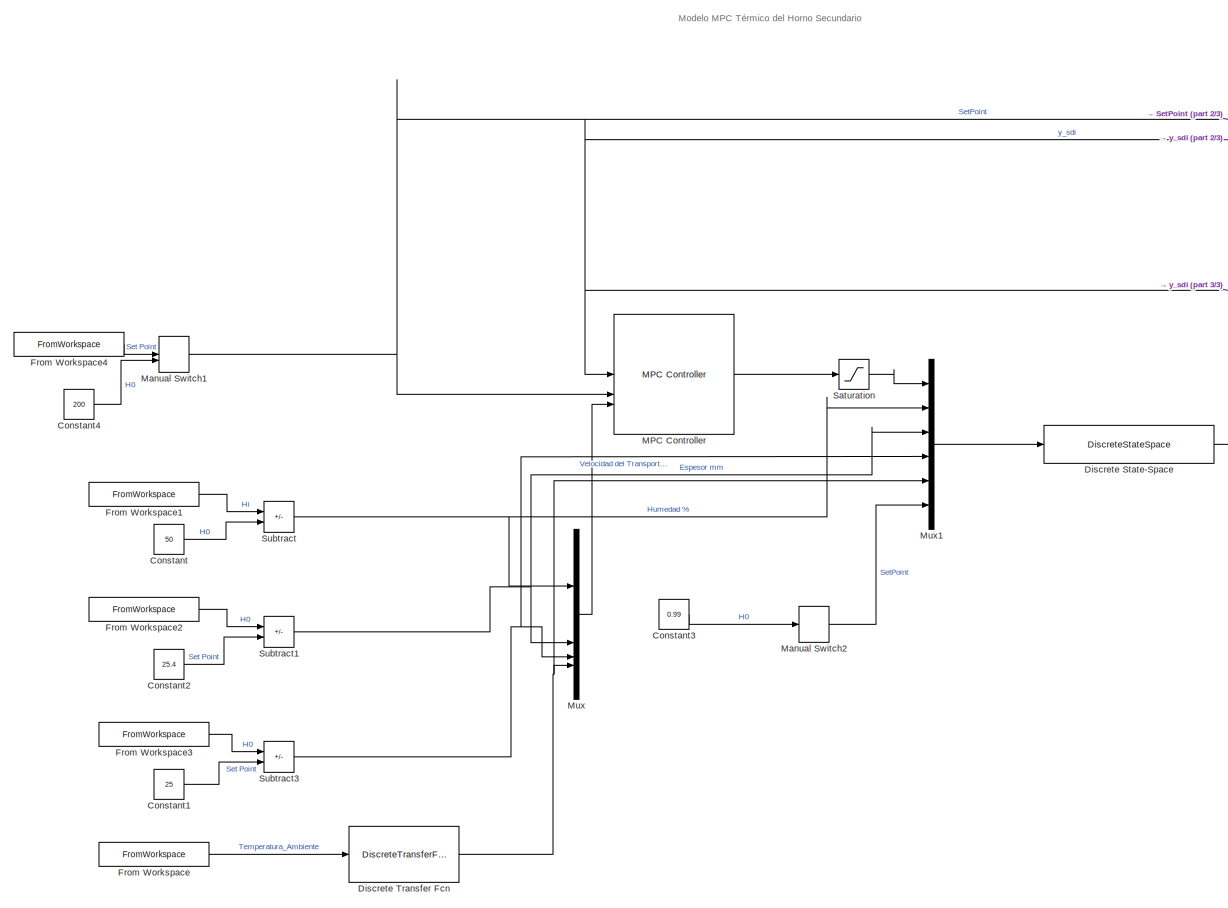
[diagram: root canvas - part 1/3, most of the canvas]
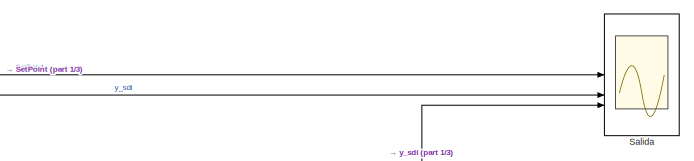
[diagram: root canvas - part 2/3, top right region]
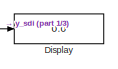
[diagram: root canvas - part 3/3, middle right region]
MODEL slx_8f8891e07308
KIND model
CONFIG AbsTol = auto
CONFIG EnableMultiTasking = off
CONFIG FixedStep = auto
CONFIG MaxStep = 1.0
CONFIG MinStep = auto
CONFIG RelTol = 1e-3
CONFIG SampleTimeConstraint = Unconstrained
CONFIG SolverName = FixedStepDiscrete
CONFIG StartTime = 0.0
CONFIG StopTime = 8000
BLOCK [Constant] Constant
  Value = 50
BLOCK [Constant] Constant1
  Value = 25
BLOCK [Constant] Constant2
  Value = 25.4
BLOCK [Constant] Constant3
  Value = 0.99
BLOCK [Constant] Constant4
  Value = 200
BLOCK [DiscreteStateSpace] Discrete State-Space
  A = Amd
  B = B_all
  C = Cmd
  D = D_all
BLOCK [DiscreteTransferFcn] Discrete Transfer Fcn
  CloseFcn = dspblkCoreblockFVToolHelper(gcbh,'close');
  CopyFcn = dspblkCoreblockFVToolHelper(gcbh,'copy');
  DeleteFcn = dspblkCoreblockFVToolHelper(gcbh,'close');
  Denominator = [1 -0.9950]
  InputPortMap = u0
  LoadFcn = dspblkCoreblockFVToolHelper(gcbh,'load');
  ModelCloseFcn = dspblkCoreblockFVToolHelper(gcbh,'close');
  Numerator = [0 0.0050]
  PostSaveFcn = dspblkCoreblockFVToolHelper(gcbh,'postsave');
  PreSaveFcn = dspblkCoreblockFVToolHelper(gcbh,'presave');
BLOCK [Display] Display
  Decimation = 3
  NameLocation = top
BLOCK [FromWorkspace] From Workspace
  OutputAfterFinalValue = Holding final value
  VariableName = deltaTempAmb_s
BLOCK [FromWorkspace] From Workspace1
  OutputAfterFinalValue = Holding final value
  VariableName = humedad_s
BLOCK [FromWorkspace] From Workspace2
  OutputAfterFinalValue = Holding final value
  VariableName = espesor_s
BLOCK [FromWorkspace] From Workspace3
  OutputAfterFinalValue = Holding final value
  VariableName = velocidad_s
BLOCK [FromWorkspace] From Workspace4
  OutputAfterFinalValue = Holding final value
  VariableName = sp
BLOCK [Reference] MPC Controller  REF=mpclib/MPC Controller  (lib defined in mdl_ae329e0e0455)
  SCDEnableBlockLinearizationSpecification = on
  SourceBlock = mpclib/MPC Controller
  SourceType = MPC
BLOCK [ManualSwitch] Manual Switch1
BLOCK [ManualSwitch] Manual Switch2
  CurrentSetting = 0
BLOCK [Mux] Mux
  DisplayOption = bar
BLOCK [Mux] Mux1
  DisplayOption = bar
  Inputs = 6
BLOCK [Scope] Salida
  ActiveDisplayYMaximum = 334.68575661195723
  ActiveDisplayYMinimum = 27.792171201159192
  ContainerLayout = {"WindowBounds":[128,48,1280,768],"gridDimensions":{"w":1,"h":1},"tileCount":1,"tileCoverage":1,"columnWeights":1,"rowWeights":1,"tileOccupancy":{}}
  DataLoggingVariableName = ScopeData2
  DisplayFullPath = on
  Floating = off
  GraphicalSettings = {"AxesScalingProperties":{"AlignXAxis":"Center","AlignYAxis":"Center","AutoScaleXAxisLimits":false,"AxesScaling":"Manual","AxesScalingNumUpdates":10,"ExpandOnly":true,"ScaleAxesLimitsAtStop":false,"XAxisDataRange":100,"YAxisDataRange":80},"Bilevel":{"AutoStateLevel":true,"Enabled":true,"HighStateLevel":2.3,"LowStateLevel":0,"LowerReferenceLevel":10,"MidReferenceLevel":50,"SettleSeek":0.02,"ShowAbe...<+3079ch>
  MultipleDisplayCache = [{"MaxYLimMag":236.98338636183337,"MaxYLimReal":334.68575661195723,"MinYLimMag":0,"MinYLimReal":27.792171201159192,"PlotAsMagnitudePhase":false,"ShowGrid":true,"ShowLegend":true,"Title":"%<SignalLabel>","YLabel":""}]
  NumInputPorts = 3
  ScopeFrameLocation = window
  ShowLegend = on
  WasSavedAsWebScope = on
  WindowPosition = [1.000000,41.000000,1536.000000,801.000000,]
BLOCK [Saturate] Saturation
  LowerLimit = 0
  UpperLimit = 1.8
BLOCK [Sum] Subtract
  IconShape = rectangular
  Inputs = +-
BLOCK [Sum] Subtract1
  IconShape = rectangular
  Inputs = +-
BLOCK [Sum] Subtract3
  IconShape = rectangular
  Inputs = +-
ANNOTATION (root): Modelo MPC Térmico del Horno Secundario
LINE Constant1:1 -> Subtract3:2
LINE Constant2:1 -> Subtract1:2
LINE Constant3:1 -> Manual Switch2:1
LINE Constant4:1 -> Manual Switch1:2
LINE Constant:1 -> Subtract:2
NET Discrete State-Space:1 -> Display:1, MPC Controller:1, Salida:2, Salida:3
NET Discrete Transfer Fcn:1 -> Mux1:5, Mux:4
LINE From Workspace1:1 -> Subtract:1
LINE From Workspace2:1 -> Subtract1:1
LINE From Workspace3:1 -> Subtract3:1
LINE From Workspace4:1 -> Manual Switch1:1
LINE From Workspace:1 -> Discrete Transfer Fcn:1
LINE MPC Controller:1 -> Saturation:1
NET Manual Switch1:1 -> MPC Controller:2, Salida:1
LINE Manual Switch2:1 -> Mux1:6
LINE Mux1:1 -> Discrete State-Space:1
LINE Mux:1 -> MPC Controller:3
LINE Saturation:1 -> Mux1:1
NET Subtract1:1 -> Mux1:3, Mux:2
NET Subtract3:1 -> Mux1:4, Mux:3
NET Subtract:1 -> Mux1:2, Mux:1
note: NET lines group one-source signal fan-out (src -> all destinations, sorted); 1:1 wires keep LINE
